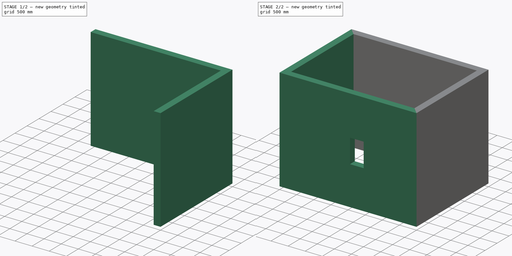
[diagram: build sequence overview — one tinted view per stage of 2, left to right]
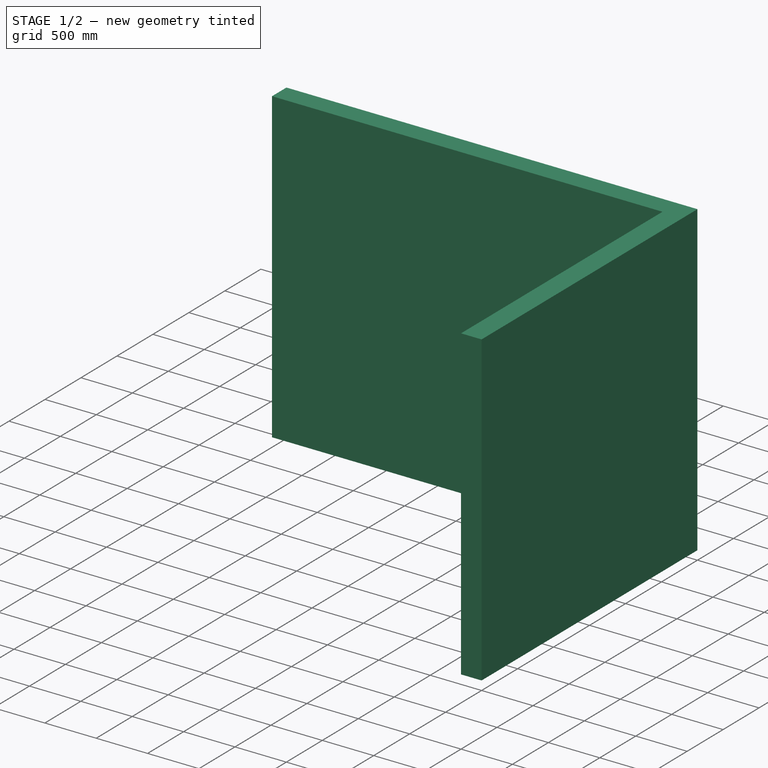
[diagram: stage 1 of 2 — iso view after this stage's code; geometry added in this stage tinted green]
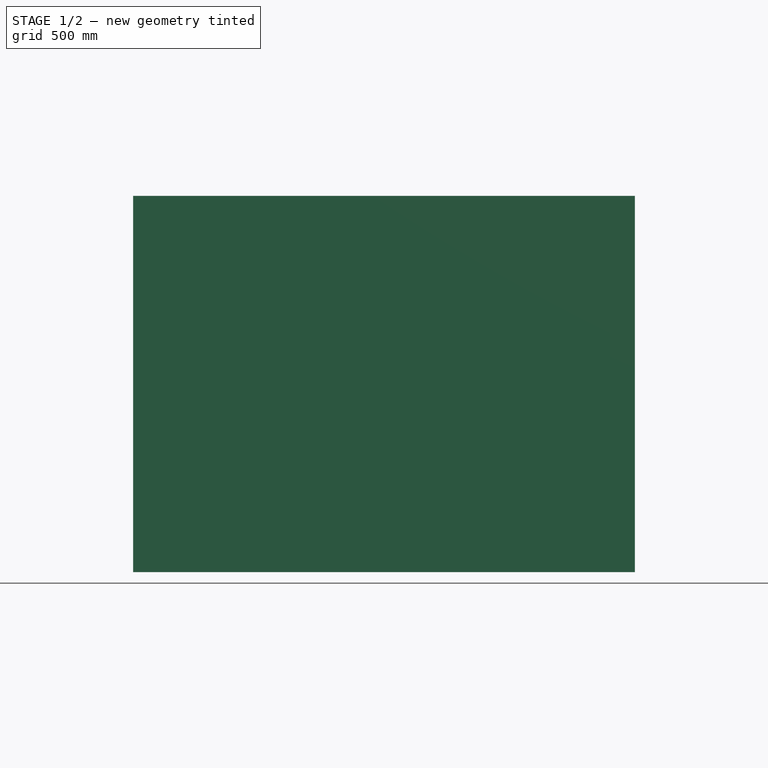
[diagram: stage 1 of 2 — front view after this stage's code; geometry added in this stage tinted green]
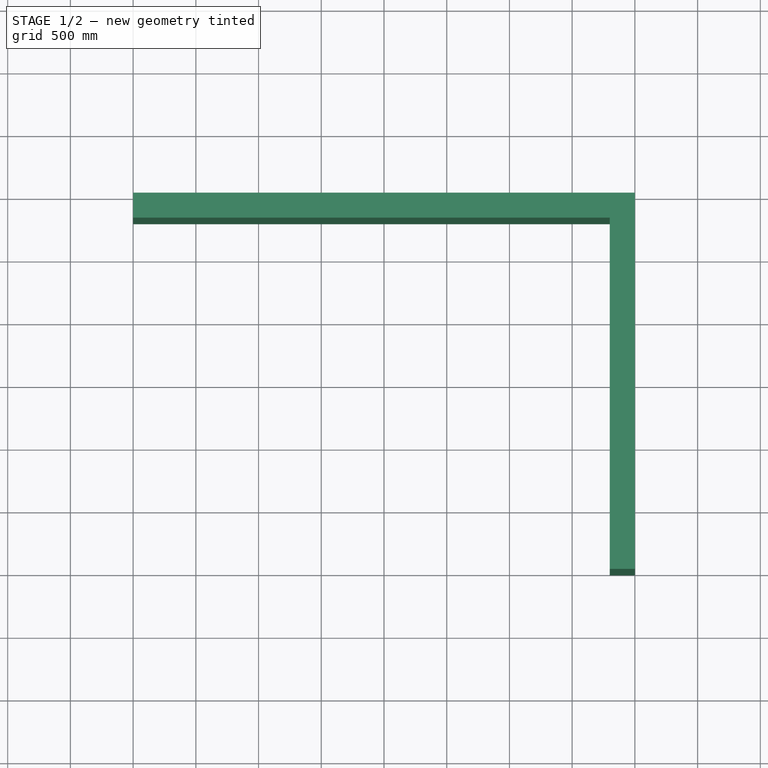
[diagram: stage 1 of 2 — top view after this stage's code; geometry added in this stage tinted green]
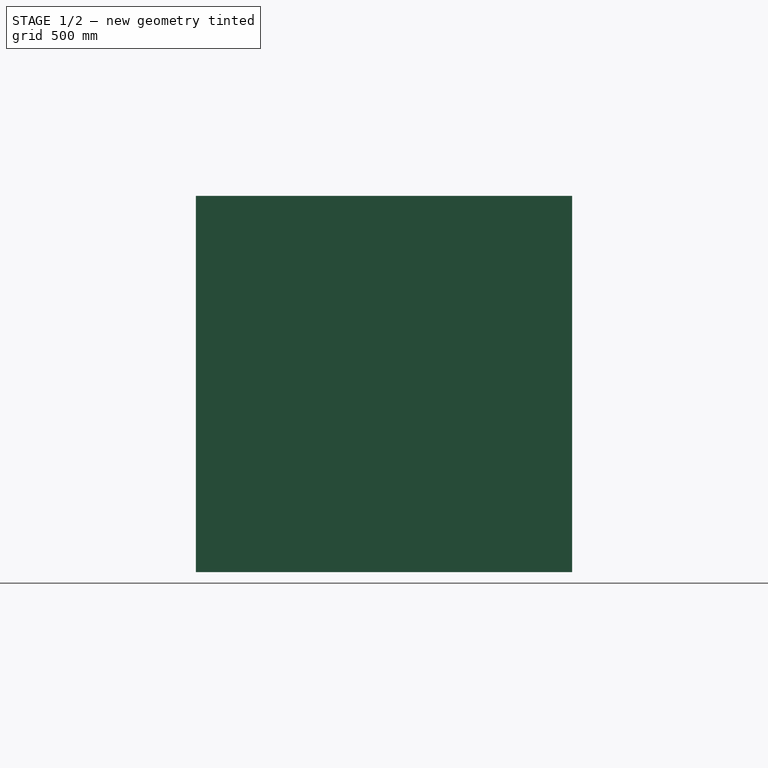
[diagram: stage 1 of 2 — right view after this stage's code; geometry added in this stage tinted green]
FCSTD DOCUMENT  (FreeCAD 0.19RUnknown)
Label: bim2-after-error.txt
License: All rights reserved
LicenseURL: http://en.wikipedia.org/wiki/All_rights_reserved
objects: Part::FeaturePython×5, Part::Part2DObjectPython×4, Sketcher::SketchObject×1
note: 10 computed .brp shape members not serialized (recipe doc carries the construction recipe); baked Part::Feature solids carry a one-line shape summary decoded from their .brp

FEATURE [Part::FeaturePython] Wall001  # Arch/BIM 166 (typed FeaturePython)
  Align = 0
  Area = 12000000
  Base = -> Line001
  BlockHeight = 0
  BlockLength = 0
  CountBroken = 0
  CountEntire = 0
  Face = 0
  Height = 3000
  HorizontalArea = 800000
  IfcData = attributes={"GlobalId": {"name": "GlobalId", "type": "IfcGloballyUniqueId", "is_enum": false, "enum_values": []}, "Description": {"... (+533 chars omitted),+1 more (map truncated)
  IfcType = 166
  Joint = 0
  Length = 4000
  MakeBlocks = false
  MoveBase = false
  MoveWithHost = false
  Normal = (0,0,0)
  OffsetFirst = 0
  OffsetSecond = 0
  PerimeterLength = 8400
  PredefinedType = 0
  VerticalArea = 2.52e+07
  Width = 200
FEATURE [Part::FeaturePython] Wall002  # Arch/BIM 166 (typed FeaturePython)
  Align = 0
  Area = 9000000
  Base = -> Line002
  BlockHeight = 0
  BlockLength = 0
  CountBroken = 0
  CountEntire = 0
  Face = 0
  Height = 3000
  HorizontalArea = 600000
  IfcData = attributes={"GlobalId": {"name": "GlobalId", "type": "IfcGloballyUniqueId", "is_enum": false, "enum_values": []}, "Description": {"... (+533 chars omitted),+1 more (map truncated)
  IfcType = 166
  Joint = 0
  Length = 3000
  MakeBlocks = false
  MoveBase = false
  MoveWithHost = false
  Normal = (0,0,0)
  OffsetFirst = 0
  OffsetSecond = 0
  PerimeterLength = 6400
  PredefinedType = 0
  VerticalArea = 19200000
  Width = 200
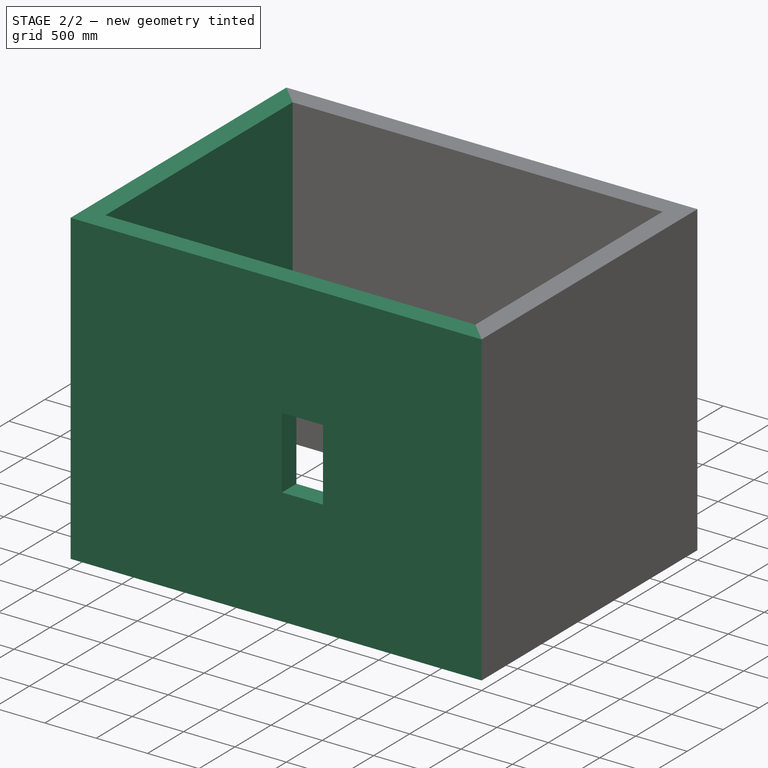
[diagram: stage 2 of 2 — iso view after this stage's code; geometry added in this stage tinted green]
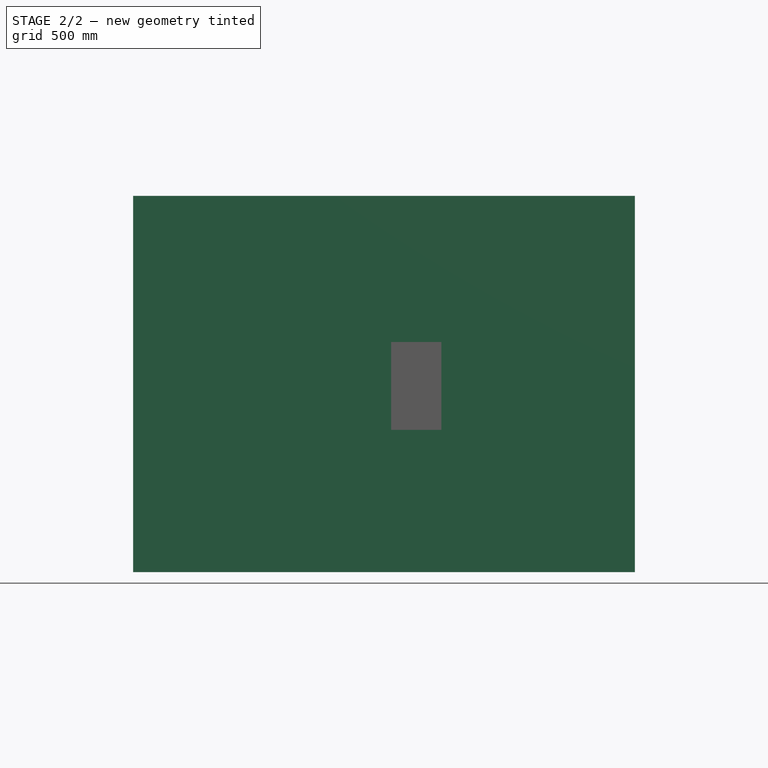
[diagram: stage 2 of 2 — front view after this stage's code; geometry added in this stage tinted green]
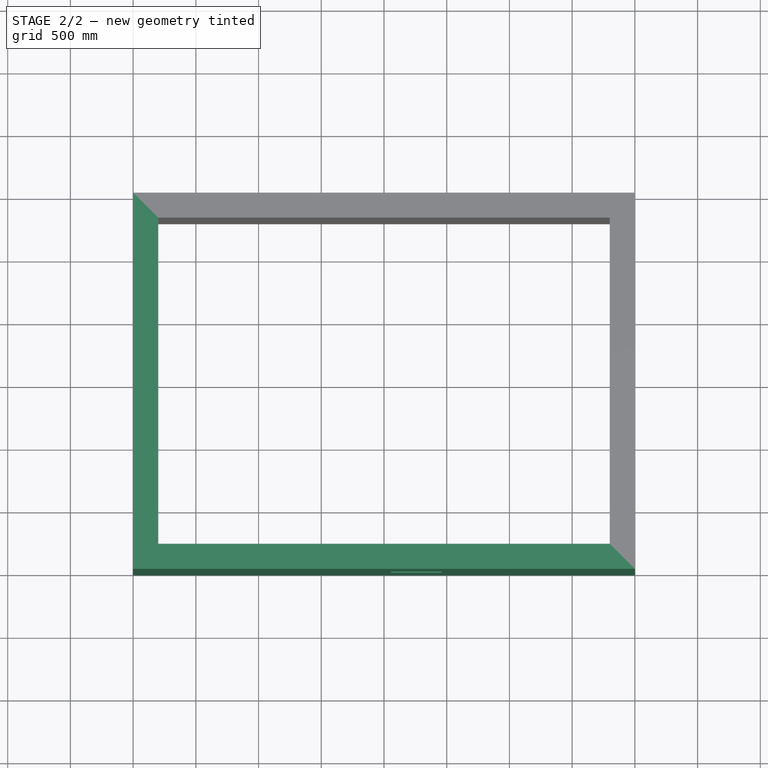
[diagram: stage 2 of 2 — top view after this stage's code; geometry added in this stage tinted green]
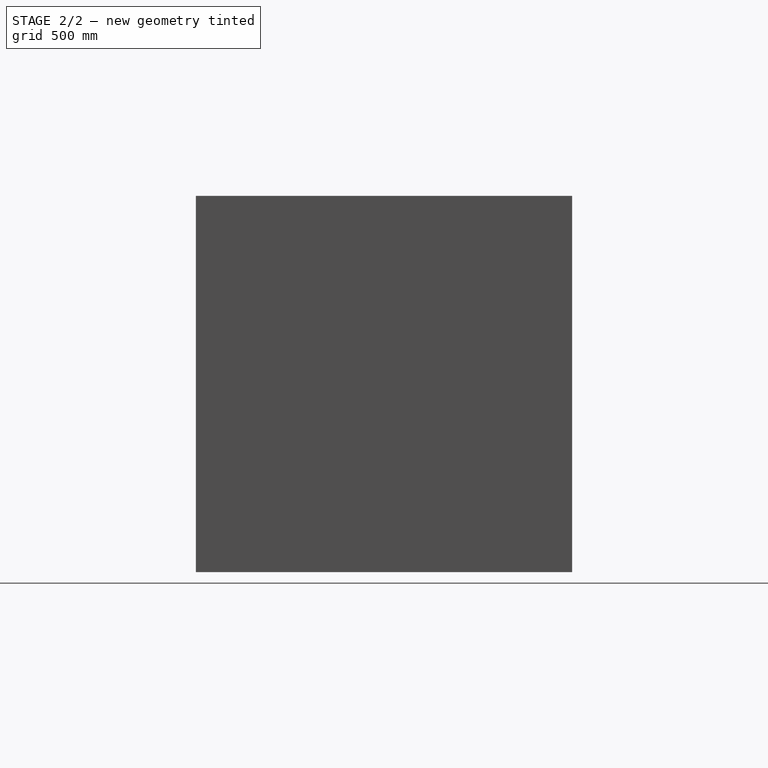
[diagram: stage 2 of 2 — right view after this stage's code; geometry added in this stage tinted green]
FEATURE [Part::Part2DObjectPython] Line  # Draft 2D object (typed FeaturePython)
  Area = 0
  ChamferSize = 0
  Closed = false
  End = (0,3000,0)
  FilletRadius = 0
  Length = 3000
  MakeFace = true
  Points = (2) [(0,0,0),(9.18485e-14,3000,0)]
  Start = (0,0,0)
  Subdivisions = 0
FEATURE [Part::Part2DObjectPython] Line001  # Draft 2D object (typed FeaturePython)
  Area = 0
  ChamferSize = 0
  Closed = false
  End = (4000,3000,0)
  FilletRadius = 0
  Length = 4000
  MakeFace = true
  Placement = pos=(0,3000,0) rot=(0,0,1;0rad)
  Points = (2) [(0,0,0),(4000,4.54747e-13,0)]
  Start = (0,3000,0)
  Subdivisions = 0
FEATURE [Part::Part2DObjectPython] Line002  # Draft 2D object (typed FeaturePython)
  Area = 0
  ChamferSize = 0
  Closed = false
  End = (4000,0,0)
  FilletRadius = 0
  Length = 3000
  MakeFace = true
  Placement = pos=(4000,3000,0) rot=(0,0,1;0rad)
  Points = (2) [(0,0,0),(0,-3000,0)]
  Start = (4000,3000,0)
  Subdivisions = 0
FEATURE [Part::Part2DObjectPython] Line003  # Draft 2D object (typed FeaturePython)
  Area = 0
  ChamferSize = 0
  Closed = false
  End = (0,0,0)
  FilletRadius = 0
  Length = 4000
  MakeFace = true
  Placement = pos=(4000,0,0) rot=(0,0,1;0rad)
  Points = (2) [(0,0,0),(-4000,1.22465e-13,0)]
  Start = (4000,0,0)
  Subdivisions = 0
FEATURE [Part::FeaturePython] Wall  # Arch/BIM 166 (typed FeaturePython)
  Align = 0
  Area = 9000000
  Base = -> Line
  BlockHeight = 0
  BlockLength = 0
  CountBroken = 0
  CountEntire = 0
  Face = 0
  Height = 3000
  HorizontalArea = 600000
  IfcData = attributes={"GlobalId": {"name": "GlobalId", "type": "IfcGloballyUniqueId", "is_enum": false, "enum_values": []}, "Description": {"... (+533 chars omitted),+1 more (map truncated)
  IfcType = 166
  Joint = 0
  Length = 3000
  MakeBlocks = false
  MoveBase = false
  MoveWithHost = false
  Normal = (0,0,0)
  OffsetFirst = 0
  OffsetSecond = 0
  PerimeterLength = 6400
  PredefinedType = 0
  VerticalArea = 19200000
  Width = 200
FEATURE [Part::FeaturePython] Wall003  # Arch/BIM 166 (typed FeaturePython)
  Additions = -> [Wall,Wall001,Wall002]
  Align = 0
  Area = 12000000
  Base = -> Line003
  BlockHeight = 0
  BlockLength = 0
  CountBroken = 0
  CountEntire = 0
  Face = 0
  Height = 3000
  HorizontalArea = 2.72e+06
  IfcData = attributes={"GlobalId": {"name": "GlobalId", "type": "IfcGloballyUniqueId", "is_enum": false, "enum_values": []}, "Description": {"... (+533 chars omitted),+1 more (map truncated)
  IfcType = 166
  Joint = 0
  Length = 4000
  MakeBlocks = false
  MoveBase = false
  MoveWithHost = false
  Normal = (0,0,0)
  OffsetFirst = 0
  OffsetSecond = 0
  PerimeterLength = 14000
  PredefinedType = 0
  VerticalArea = 78920000
  Width = 200
FEATURE [Sketcher::SketchObject] Sketch
  Placement = pos=(2057.24,1.137e-13,1134.5) rot=(1,0,0;1.5708rad)
  sketch-geometry (24):
    g0: LineSegment StartX=0 StartY=0 StartZ=0 EndX=400 EndY=0 EndZ=0
    g1: LineSegment StartX=400 StartY=0 StartZ=0 EndX=400 EndY=700 EndZ=0
    g2: LineSegment StartX=400 StartY=700 StartZ=0 EndX=0 EndY=700 EndZ=0
    g3: LineSegment StartX=0 StartY=700 StartZ=0 EndX=0 EndY=0 EndZ=0
    g4: LineSegment StartX=102 StartY=102 StartZ=0 EndX=298 EndY=102 EndZ=0
    g5: LineSegment StartX=298 StartY=102 StartZ=0 EndX=298 EndY=598 EndZ=0
    g6: LineSegment StartX=298 StartY=598 StartZ=0 EndX=102 EndY=598 EndZ=0
    g7: LineSegment StartX=102 StartY=598 StartZ=0 EndX=102 EndY=102 EndZ=0
    g8: LineSegment StartX=112.2 StartY=112.2 StartZ=0 EndX=194.9 EndY=112.2 EndZ=0
    g9: LineSegment StartX=194.9 StartY=112.2 StartZ=0 EndX=194.9 EndY=587.8 EndZ=0
    g10: LineSegment StartX=194.9 StartY=587.8 StartZ=0 EndX=112.2 EndY=587.8 EndZ=0
    g11: LineSegment StartX=112.2 StartY=587.8 StartZ=0 EndX=112.2 EndY=112.2 EndZ=0
    g12: LineSegment StartX=112.2 StartY=112.2 StartZ=0 EndX=194.9 EndY=112.2 EndZ=0
    g13: LineSegment StartX=194.9 StartY=112.2 StartZ=0 EndX=194.9 EndY=587.8 EndZ=0
    g14: LineSegment StartX=194.9 StartY=587.8 StartZ=0 EndX=112.2 EndY=587.8 EndZ=0
    g15: LineSegment StartX=112.2 StartY=587.8 StartZ=0 EndX=112.2 EndY=112.2 EndZ=0
    g16: LineSegment StartX=205.1 StartY=112.2 StartZ=0 EndX=287.8 EndY=112.2 EndZ=0
    g17: LineSegment StartX=287.8 StartY=112.2 StartZ=0 EndX=287.8 EndY=587.8 EndZ=0
    g18: LineSegment StartX=287.8 StartY=587.8 StartZ=0 EndX=205.1 EndY=587.8 EndZ=0
    g19: LineSegment StartX=205.1 StartY=587.8 StartZ=0 EndX=205.1 EndY=112.2 EndZ=0
    g20: LineSegment StartX=205.1 StartY=112.2 StartZ=0 EndX=287.8 EndY=112.2 EndZ=0
    g21: LineSegment StartX=287.8 StartY=112.2 StartZ=0 EndX=287.8 EndY=587.8 EndZ=0
    g22: LineSegment StartX=287.8 StartY=587.8 StartZ=0 EndX=205.1 EndY=587.8 EndZ=0
    g23: LineSegment StartX=205.1 StartY=587.8 StartZ=0 EndX=205.1 EndY=112.2 EndZ=0
  constraints (71):
    c: Coincident(g0,g1)
    c: Coincident(g1,g2)
    c: Coincident(g2,g3)
    c: Coincident(g3,g0)
    c: Horizontal(g0)
    c: Horizontal(g2)
    c: Vertical(g1)
    c: Vertical(g3)
    c: Coincident(g4,g5)
    c: Coincident(g5,g6)
    c: Coincident(g6,g7)
    c: Coincident(g7,g4)
    c: Horizontal(g4)
    c: Horizontal(g6)
    c: Vertical(g5)
    c: Vertical(g7)
    c: DistanceY(g1) = 700  'Height'
    c: DistanceX(g0) = 400  'Width'
    c: DistanceY(g6,g2) = 102  'Frame1'
    c: DistanceX(g2,g6) = 102  'Frame2'
    c: DistanceX(g4,g0) = 102  'Frame3'
    c: DistanceY(g0,g4) = 102  'Frame4'
    c: Coincident(g0,g-1)
    c: Coincident(g8,g9)
    c: Coincident(g9,g10)
    c: Coincident(g10,g11)
    c: Coincident(g11,g8)
    c: Horizontal(g8)
    c: Horizontal(g10)
    c: Vertical(g9)
    c: Vertical(g11)
    c: Coincident(g12,g13)
    c: Coincident(g13,g14)
    c: Coincident(g14,g15)
    c: Coincident(g15,g12)
    c: Horizontal(g12)
    c: Horizontal(g14)
    c: Vertical(g13)
    c: Vertical(g15)
    c: Coincident(g16,g17)
    c: Coincident(g17,g18)
    c: Coincident(g18,g19)
    c: Coincident(g19,g16)
    c: Horizontal(g16)
    c: Horizontal(g18)
    c: Vertical(g17)
    c: Vertical(g19)
    c: Coincident(g20,g21)
    c: Coincident(g21,g22)
    c: Coincident(g22,g23)
    c: Coincident(g23,g20)
    c: Horizontal(g20)
    c: Horizontal(g22)
    c: Vertical(g21)
    c: Vertical(g23)
    c: DistanceY(g8,g12) = 0
    c: DistanceX(g8,g12) = 0
    c: DistanceX(g21,g17) = 0
    c: DistanceY(g21,g17) = 0
    c: DistanceX(g16,g20) = 0
    c: DistanceX(g14,g10) = 0
    c: Equal(g22,g14)
    c: DistanceY(g8,g16) = 0
    c: DistanceY(g10,g18) = 0
    c: DistanceX(g4,g8) = 10.2
    c: DistanceY(g4,g8) = 10.2
    c: DistanceX(g6,g18) = -10.2
    c: DistanceY(g6,g18) = -10.2
    c: DistanceX(g9,g19) = 10.2
    c: PointOnObject(g13,g22)
    c: PointOnObject(g20,g12)
FEATURE [Part::FeaturePython] Window  # Arch/BIM 170 (typed FeaturePython)
  Area = 0
  Base = -> Sketch
  Frame = 102
  Height = 700
  HoleDepth = 0
  HoleWire = 0
  HorizontalArea = 0
  Hosts = -> [Wall003]
  IfcData = attributes={"GlobalId": {"name": "GlobalId", "type": "IfcGloballyUniqueId", "is_enum": false, "enum_values": []}, "Description": {"... (+1229 chars omitted),+1 more (map truncated)
  IfcType = 170
  LouvreSpacing = 0
  LouvreWidth = 0
  MoveBase = false
  MoveWithHost = true
  Normal = (0,1,-2e-16)
  Offset = 10
  Opening = 0
  OverallHeight = 700
  OverallWidth = 400
  PartitioningType = 0
  PerimeterLength = 0
  PredefinedType = 0
  Preset = 3
  SymbolElevation = false
  SymbolPlan = false
  VerticalArea = 0
  Width = 400
  WindowParts = OuterFrame | Frame | Wire0,Wire1 | 0.0+V | 0.00+V | LeftFrame | Frame | Wire2,Wire3,Edge8,Mode1 | 0.00+V | 10.0+V | LeftGlass | Glass panel | Wire3 | 1.0 | 15.0+V | RightFrame | Frame | Wire4,Wire5,Edge6,Mode2 | 0.00+V | 10.0+V | RightGlass | Glass panel | Wire5 | 1.0 | 15.0+V
  expr: OverallWidth = .Width.Value
  expr: OverallHeight = .Height.Value
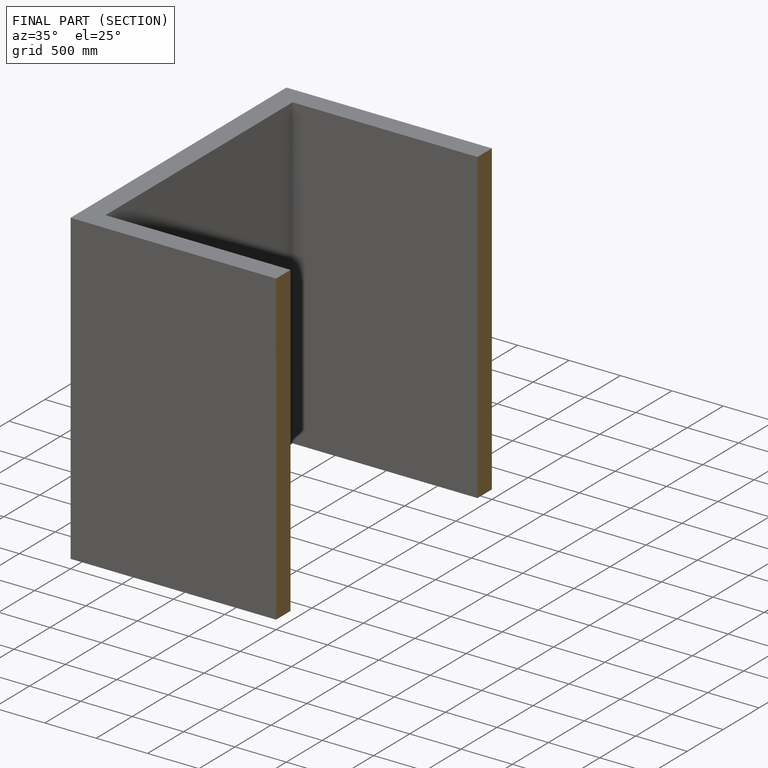
[diagram: finished part — half-section view (interior)]
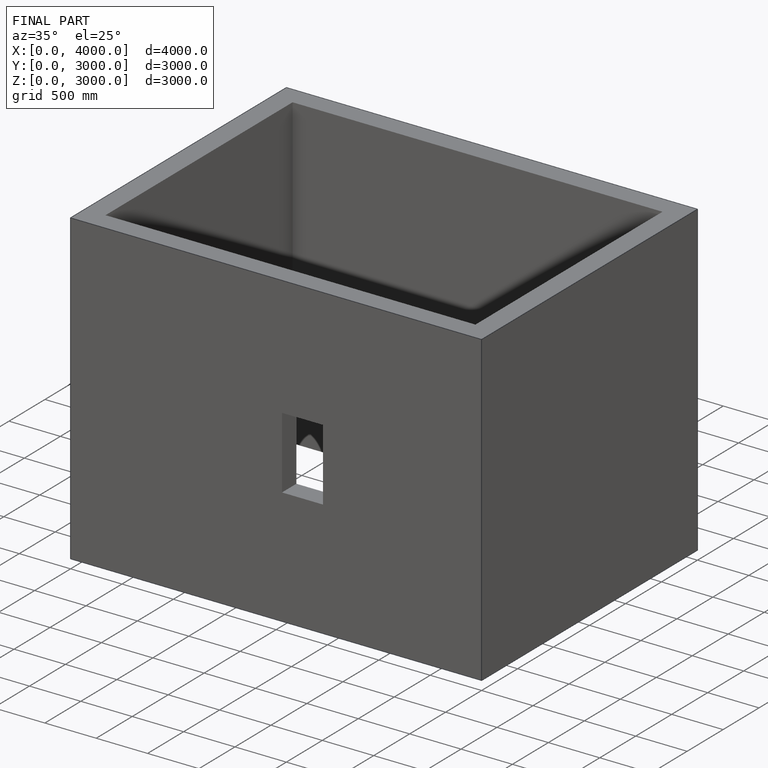
[diagram: finished part — iso view with bounding-box wireframe]
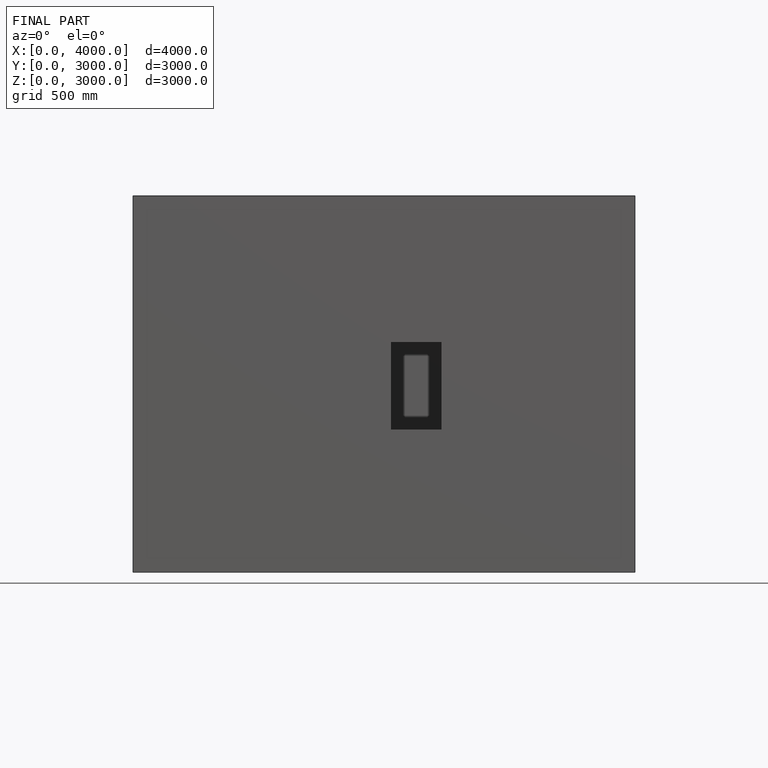
[diagram: finished part — front view with bounding-box wireframe]
